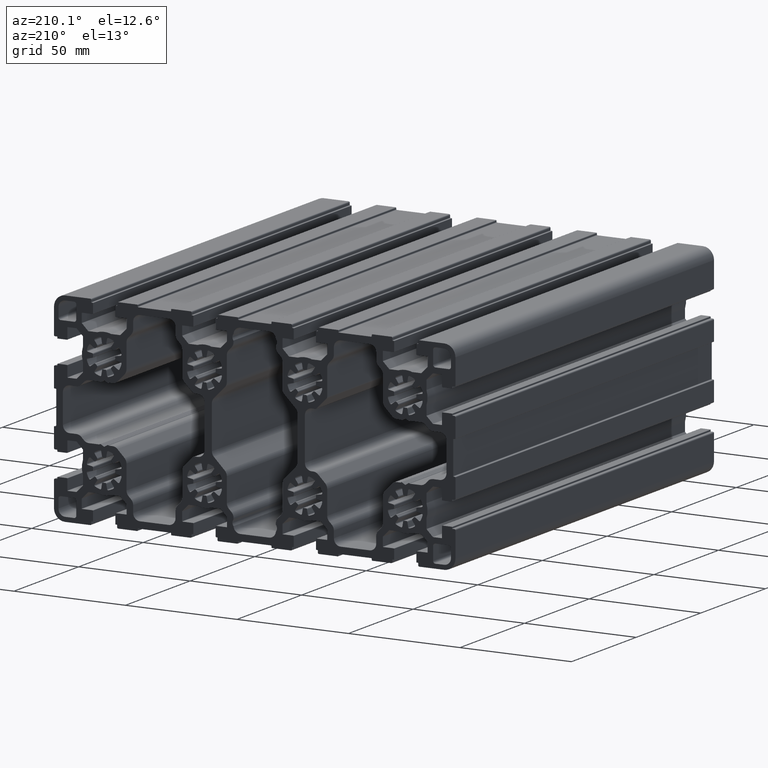
[diagram: clean part render]
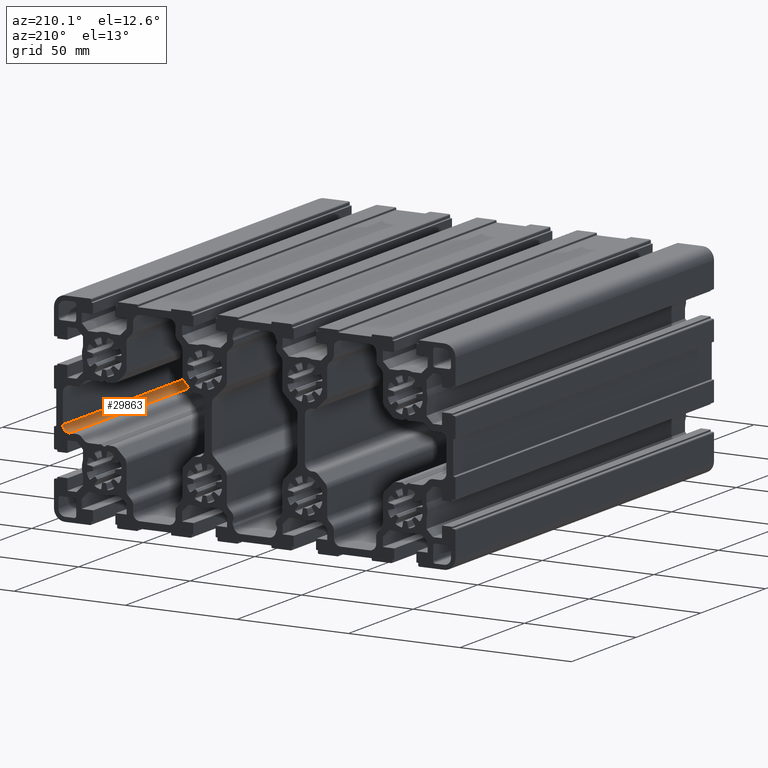
[diagram: same view with one face highlighted and labeled with its STEP entity id]
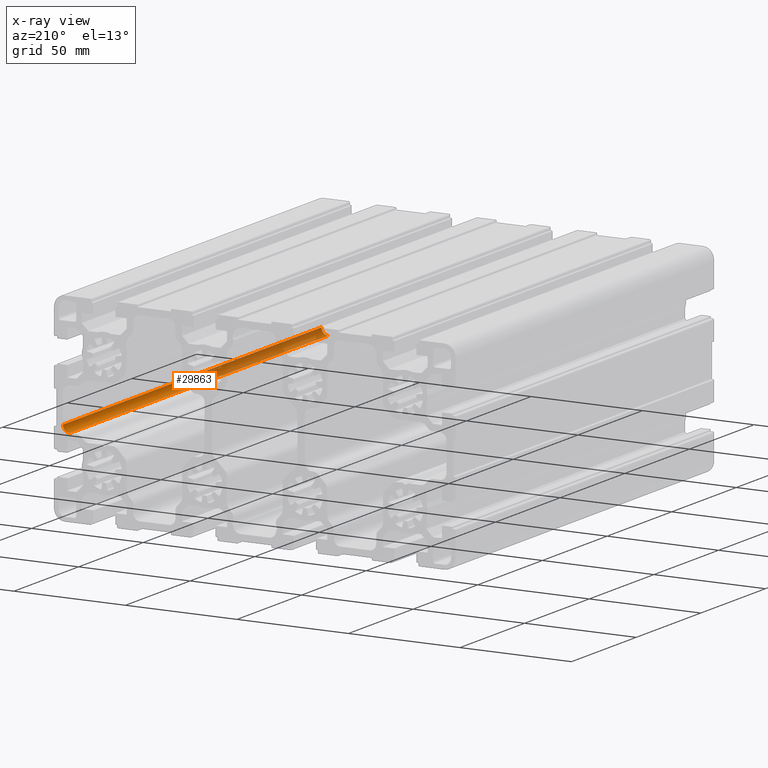
[diagram: x-ray of the same camera — body ghosted, the highlighted face saturated]
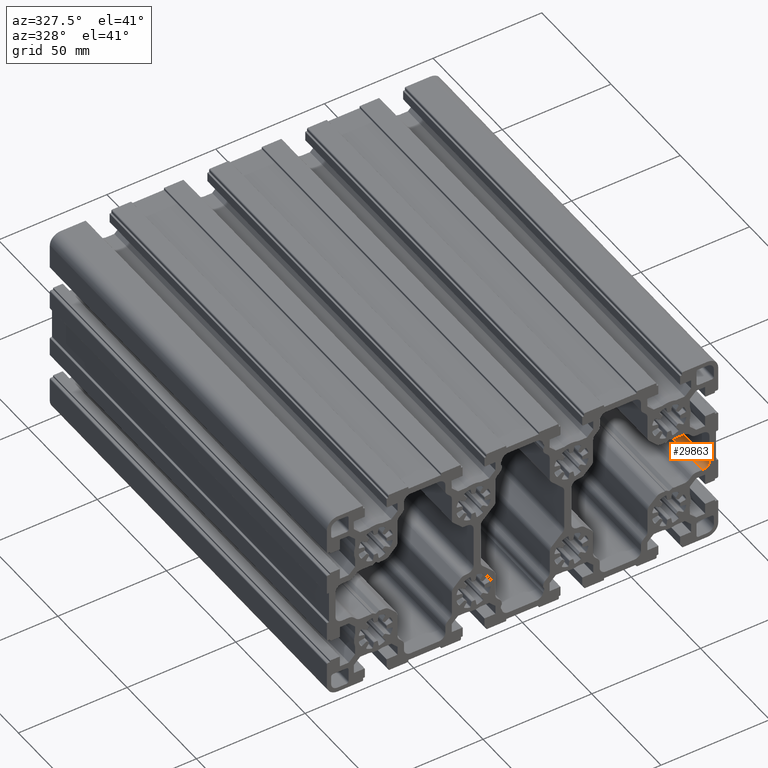
[diagram: same view with one face highlighted and labeled with its STEP entity id]
A machine part, auxiliary view. The second image highlights one B-rep face of the part: STEP entity #29863.
The next image is the same camera in x-ray: the body ghosted, the highlighted face saturated — about 53% of this face is hidden behind the body in this view.
A second angle (auxiliary view) of the same face is appended — the face is thin or edge-on in the first view.
In plain terms, the highlighted cylindrical surface (edge-blend (fillet) strip) has radius 3 mm, axis along (0, 1, 0).
Its self-contained STEP definition (entity closure, byte-faithful):
#118 = CARTESIAN_POINT ( 'NONE',  ( 86.00000000000000000, 0.0000000000000000000, -6.499999999999899600 ) ) ;
#3291 = CARTESIAN_POINT ( 'NONE',  ( 83.00000000000000000, 0.0000000000000000000, -9.499999999999941400 ) ) ;
#3312 = DIRECTION ( 'NONE',  ( 0.0000000000000000000, 0.0000000000000000000, 1.000000000000000000 ) ) ;
#3476 = VERTEX_POINT ( 'NONE', #3291 ) ;
#3552 = LINE ( 'NONE', #36929, #31588 ) ;
#4671 = DIRECTION ( 'NONE',  ( 0.0000000000000000000, 1.000000000000000000, 0.0000000000000000000 ) ) ;
#5409 = CYLINDRICAL_SURFACE ( 'NONE', #25250, 3.000000000000000000 ) ;
#5872 = VERTEX_POINT ( 'NONE', #118 ) ;
#6655 = DIRECTION ( 'NONE',  ( 0.0000000000000000000, 1.000000000000000000, 0.0000000000000000000 ) ) ;
#8140 = DIRECTION ( 'NONE',  ( 0.0000000000000000000, 0.0000000000000000000, 1.000000000000000000 ) ) ;
#9434 = ORIENTED_EDGE ( 'NONE', *, *, #29431, .F. ) ;
#9840 = CARTESIAN_POINT ( 'NONE',  ( 83.00000000000000000, 0.0000000000000000000, -6.499999999999899600 ) ) ;
#12333 = ORIENTED_EDGE ( 'NONE', *, *, #31052, .T. ) ;
#13293 = ORIENTED_EDGE ( 'NONE', *, *, #24489, .F. ) ;
#15314 = DIRECTION ( 'NONE',  ( 0.0000000000000000000, 0.0000000000000000000, 1.000000000000000000 ) ) ;
#15747 = EDGE_LOOP ( 'NONE', ( #13293, #9434, #12333, #34439 ) ) ;
#17952 = DIRECTION ( 'NONE',  ( 0.0000000000000000000, 1.000000000000000000, 0.0000000000000000000 ) ) ;
#18207 = DIRECTION ( 'NONE',  ( 0.0000000000000000000, 1.000000000000000000, 0.0000000000000000000 ) ) ;
#18903 = EDGE_CURVE ( 'NONE', #42680, #40193, #29032, .T. ) ;
#20484 = AXIS2_PLACEMENT_3D ( 'NONE', #27712, #4671, #8140 ) ;
#21672 = CARTESIAN_POINT ( 'NONE',  ( 83.00000000000000000, 200.0000000000000000, -6.499999999999899600 ) ) ;
#24489 = EDGE_CURVE ( 'NONE', #3476, #42680, #3552, .T. ) ;
#24631 = AXIS2_PLACEMENT_3D ( 'NONE', #21672, #28511, #15314 ) ;
#24755 = CARTESIAN_POINT ( 'NONE',  ( 86.00000000000000000, 0.0000000000000000000, -6.499999999999900500 ) ) ;
#25250 = AXIS2_PLACEMENT_3D ( 'NONE', #9840, #6655, #3312 ) ;
#25443 = CARTESIAN_POINT ( 'NONE',  ( 83.00000000000000000, 200.0000000000000000, -9.499999999999941400 ) ) ;
#25562 = LINE ( 'NONE', #24755, #42282 ) ;
#27621 = CARTESIAN_POINT ( 'NONE',  ( 86.00000000000000000, 200.0000000000000000, -6.499999999999899600 ) ) ;
#27706 = FACE_OUTER_BOUND ( 'NONE', #15747, .T. ) ;
#27712 = CARTESIAN_POINT ( 'NONE',  ( 83.00000000000000000, 0.0000000000000000000, -6.499999999999899600 ) ) ;
#28511 = DIRECTION ( 'NONE',  ( -0.0000000000000000000, -1.000000000000000000, -0.0000000000000000000 ) ) ;
#29032 = CIRCLE ( 'NONE', #24631, 3.000000000000000000 ) ;
#29431 = EDGE_CURVE ( 'NONE', #5872, #3476, #40284, .T. ) ;
#29863 = ADVANCED_FACE ( 'NONE', ( #27706 ), #5409, .F. ) ;
#31052 = EDGE_CURVE ( 'NONE', #5872, #40193, #25562, .T. ) ;
#31588 = VECTOR ( 'NONE', #17952, 1000.000000000000000 ) ;
#34439 = ORIENTED_EDGE ( 'NONE', *, *, #18903, .F. ) ;
#36929 = CARTESIAN_POINT ( 'NONE',  ( 83.00000000000000000, 0.0000000000000000000, -9.499999999999900500 ) ) ;
#40193 = VERTEX_POINT ( 'NONE', #27621 ) ;
#40284 = CIRCLE ( 'NONE', #20484, 3.000000000000000000 ) ;
#42282 = VECTOR ( 'NONE', #18207, 1000.000000000000000 ) ;
#42680 = VERTEX_POINT ( 'NONE', #25443 ) ;